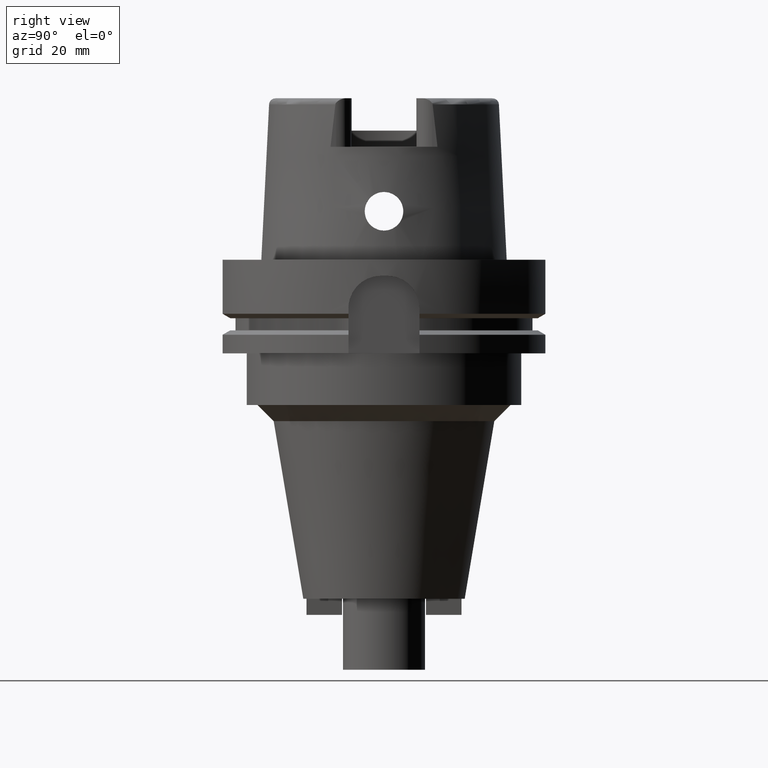
[diagram: clean part render]
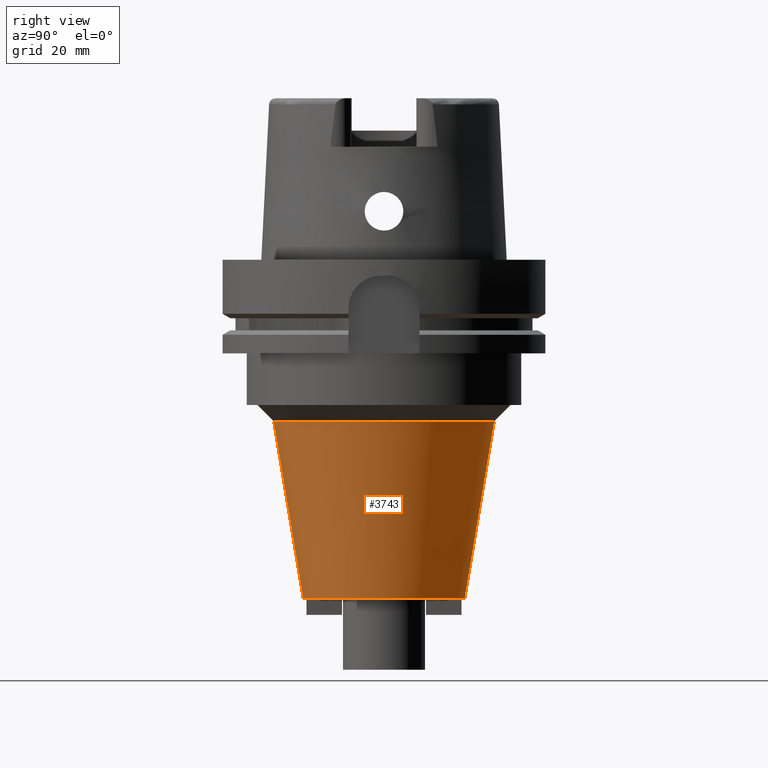
[diagram: same view with one face highlighted and labeled with its STEP entity id]
A machine part, right view. The second image highlights one B-rep face of the part: STEP entity #3743.
In plain terms, the highlighted conical surface has half-angle 9.462 deg.
Its self-contained STEP definition (entity closure, byte-faithful):
#1217=CARTESIAN_POINT('',(0.E0,0.E0,-1.05E2));
#1218=DIRECTION('',(0.E0,0.E0,1.E0));
#1219=DIRECTION('',(0.E0,-1.E0,0.E0));
#1220=AXIS2_PLACEMENT_3D('',#1217,#1218,#1219);
#1277=DIRECTION('',(0.E0,-1.644020481395E-1,-9.863934136882E-1));
#1278=VECTOR('',#1277,5.575868536505E1);
#1279=CARTESIAN_POINT('',(0.E0,3.416684207558E1,-5.E1));
#1280=LINE('',#1279,#1278);
#1284=CARTESIAN_POINT('',(0.E0,0.E0,-5.E1));
#1285=DIRECTION('',(0.E0,0.E0,1.E0));
#1286=DIRECTION('',(0.E0,-1.E0,0.E0));
#1287=AXIS2_PLACEMENT_3D('',#1284,#1285,#1286);
#1292=DIRECTION('',(0.E0,1.644020481395E-1,-9.863934136882E-1));
#1293=VECTOR('',#1292,5.575868536505E1);
#1294=CARTESIAN_POINT('',(0.E0,-3.416684207558E1,-5.E1));
#1295=LINE('',#1294,#1293);
#2613=CARTESIAN_POINT('',(0.E0,-2.5E1,-1.05E2));
#2614=CARTESIAN_POINT('',(0.E0,2.5E1,-1.05E2));
#2615=VERTEX_POINT('',#2613);
#2616=VERTEX_POINT('',#2614);
#2633=CARTESIAN_POINT('',(0.E0,3.416684207558E1,-5.E1));
#2634=VERTEX_POINT('',#2633);
#2635=CARTESIAN_POINT('',(0.E0,-3.416684207558E1,-5.E1));
#2636=VERTEX_POINT('',#2635);
#3729=CARTESIAN_POINT('',(0.E0,0.E0,-7.75E1));
#3730=DIRECTION('',(0.E0,0.E0,1.E0));
#3731=DIRECTION('',(0.E0,1.E0,0.E0));
#3732=AXIS2_PLACEMENT_3D('',#3729,#3730,#3731);
#3733=CONICAL_SURFACE('',#3732,2.958342103779E1,9.4625E0);
#3735=ORIENTED_EDGE('',*,*,#3734,.T.);
#3736=ORIENTED_EDGE('',*,*,#3698,.F.);
#3738=ORIENTED_EDGE('',*,*,#3737,.F.);
#3740=ORIENTED_EDGE('',*,*,#3739,.T.);
#3741=EDGE_LOOP('',(#3735,#3736,#3738,#3740));
#3742=FACE_OUTER_BOUND('',#3741,.F.);
#1221=CIRCLE('',#1220,2.5E1);
#1288=CIRCLE('',#1287,3.416684207558E1);
#3698=EDGE_CURVE('',#2615,#2616,#1221,.T.);
#3734=EDGE_CURVE('',#2634,#2616,#1280,.T.);
#3737=EDGE_CURVE('',#2636,#2615,#1295,.T.);
#3739=EDGE_CURVE('',#2636,#2634,#1288,.T.);
#3743=ADVANCED_FACE('',(#3742),#3733,.T.);